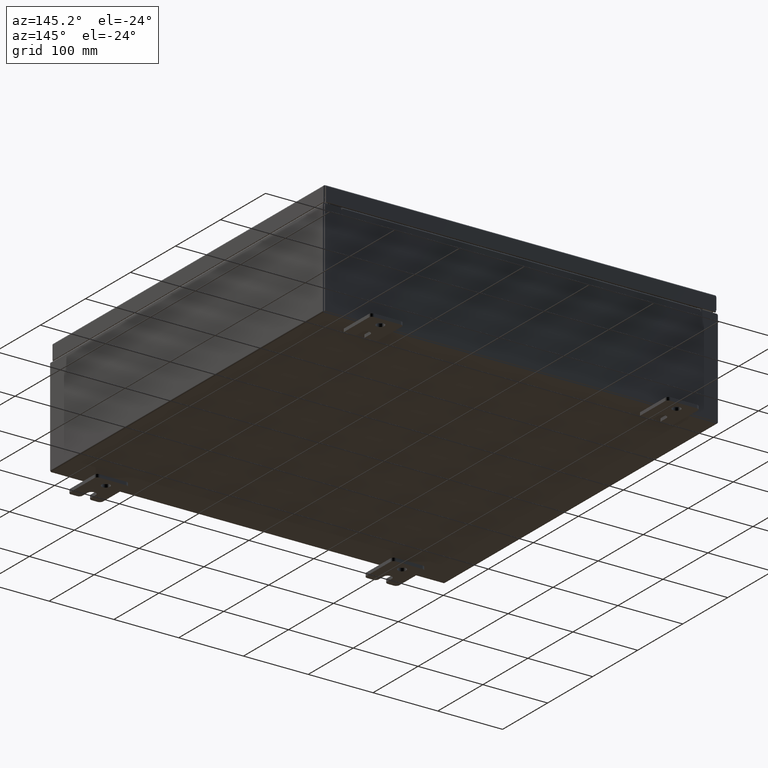
[diagram: clean part render]
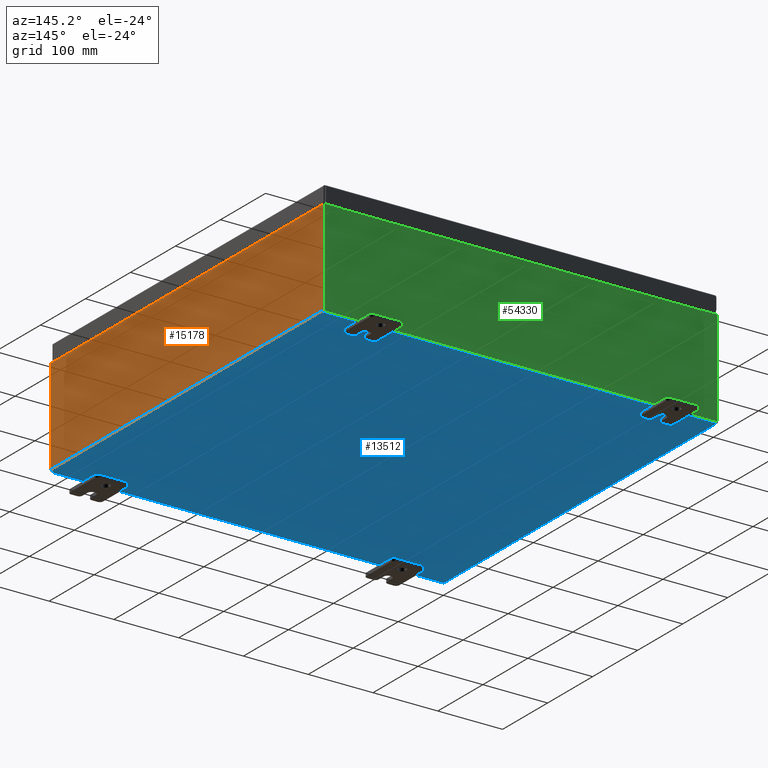
[diagram: same view with three faces highlighted in distinct colors, each labeled with its STEP entity id]
A machine part, auxiliary view with three faces highlighted in distinct colors.
Their STEP definitions:

[orange] entity #15178 — the highlighted planar face has unit normal (-1, 0, 0).
#2900 = LINE ( 'NONE', #6204, #40465 ) ;
#4732 = VECTOR ( 'NONE', #24014, 39.37007874015748100 ) ;
#6204 = CARTESIAN_POINT ( 'NONE',  ( 11.99999999999999800, 11.92529999999999800, -4.009536492811464200E-014 ) ) ;
#6320 = ORIENTED_EDGE ( 'NONE', *, *, #22843, .T. ) ;
#8181 = DIRECTION ( 'NONE',  ( -0.0000000000000000000, -1.000000000000000000, -0.0000000000000000000 ) ) ;
#11102 = ORIENTED_EDGE ( 'NONE', *, *, #27603, .T. ) ;
#13119 = CARTESIAN_POINT ( 'NONE',  ( 12.00000000000001800, 11.92529999999999800, 5.837600000000001000 ) ) ;
#15178 = ADVANCED_FACE ( 'NONE', ( #49712 ), #19021, .F. ) ;
#15546 = EDGE_CURVE ( 'NONE', #23301, #36676, #25959, .T. ) ;
#15732 = ORIENTED_EDGE ( 'NONE', *, *, #28628, .T. ) ;
#15972 = CARTESIAN_POINT ( 'NONE',  ( 11.99999999999999800, -11.92530000000000400, 0.01299999999999986400 ) ) ;
#16179 = DIRECTION ( 'NONE',  ( -0.0000000000000000000, -1.000000000000000000, -0.0000000000000000000 ) ) ;
#18312 = CARTESIAN_POINT ( 'NONE',  ( 12.00000000000001800, 11.92529999999999600, 5.837600000000001000 ) ) ;
#19021 = PLANE ( 'NONE',  #26257 ) ;
#20578 = VERTEX_POINT ( 'NONE', #18312 ) ;
#22843 = EDGE_CURVE ( 'NONE', #51726, #36676, #55375, .T. ) ;
#23301 = VERTEX_POINT ( 'NONE', #61904 ) ;
#24014 = DIRECTION ( 'NONE',  ( -3.319545939341922800E-015, 0.0000000000000000000, -1.000000000000000000 ) ) ;
#25895 = VECTOR ( 'NONE', #8181, 39.37007874015748100 ) ;
#25959 = LINE ( 'NONE', #15972, #63489 ) ;
#26150 = CARTESIAN_POINT ( 'NONE',  ( 11.99999999999999800, -11.92530000000000400, 0.01299999999999985900 ) ) ;
#26257 = AXIS2_PLACEMENT_3D ( 'NONE', #28867, #63120, #33744 ) ;
#27603 = EDGE_CURVE ( 'NONE', #23301, #20578, #2900, .T. ) ;
#28440 = ORIENTED_EDGE ( 'NONE', *, *, #15546, .F. ) ;
#28628 = EDGE_CURVE ( 'NONE', #20578, #51726, #50404, .T. ) ;
#28721 = EDGE_LOOP ( 'NONE', ( #15732, #6320, #28440, #11102 ) ) ;
#28867 = CARTESIAN_POINT ( 'NONE',  ( 11.99999999999999800, 0.0000000000000000000, -4.009536492811464200E-014 ) ) ;
#33744 = DIRECTION ( 'NONE',  ( 3.319545939341922000E-015, 0.0000000000000000000, 1.000000000000000000 ) ) ;
#36676 = VERTEX_POINT ( 'NONE', #26150 ) ;
#40465 = VECTOR ( 'NONE', #59789, 39.37007874015748100 ) ;
#43949 = CARTESIAN_POINT ( 'NONE',  ( 12.00000000000001800, -11.92530000000000400, 5.837600000000001000 ) ) ;
#48400 = CARTESIAN_POINT ( 'NONE',  ( 11.99999999999999800, -11.92530000000000400, -4.009536492811464200E-014 ) ) ;
#49712 = FACE_OUTER_BOUND ( 'NONE', #28721, .T. ) ;
#50404 = LINE ( 'NONE', #13119, #25895 ) ;
#51726 = VERTEX_POINT ( 'NONE', #43949 ) ;
#55375 = LINE ( 'NONE', #48400, #4732 ) ;
#59789 = DIRECTION ( 'NONE',  ( 3.319545939341922800E-015, 0.0000000000000000000, 1.000000000000000000 ) ) ;
#61904 = CARTESIAN_POINT ( 'NONE',  ( 11.99999999999999800, 11.92529999999999600, 0.01299999999999986400 ) ) ;
#63120 = DIRECTION ( 'NONE',  ( -1.000000000000000000, 0.0000000000000000000, 3.319545939341922000E-015 ) ) ;
#63489 = VECTOR ( 'NONE', #16179, 39.37007874015748100 ) ;

[blue] entity #13512 — the highlighted planar face has unit normal (0, 0, -1).
#408 = DIRECTION ( 'NONE',  ( -0.0000000000000000000, 1.000000000000000000, -0.0000000000000000000 ) ) ;
#1200 = EDGE_LOOP ( 'NONE', ( #17923, #57495, #2611, #40762 ) ) ;
#2166 = FACE_OUTER_BOUND ( 'NONE', #1200, .T. ) ;
#2611 = ORIENTED_EDGE ( 'NONE', *, *, #36293, .F. ) ;
#4412 = VECTOR ( 'NONE', #39844, 39.37007874015748100 ) ;
#13512 = ADVANCED_FACE ( 'NONE', ( #2166 ), #56625, .T. ) ;
#14668 = AXIS2_PLACEMENT_3D ( 'NONE', #22578, #27507, #61740 ) ;
#15444 = CARTESIAN_POINT ( 'NONE',  ( -12.00000000000000400, -11.92530000000000400, -0.07470000000000000300 ) ) ;
#17923 = ORIENTED_EDGE ( 'NONE', *, *, #27515, .F. ) ;
#18587 = EDGE_CURVE ( 'NONE', #38878, #34836, #27327, .T. ) ;
#18910 = DIRECTION ( 'NONE',  ( -1.000000000000000000, -0.0000000000000000000, -0.0000000000000000000 ) ) ;
#21769 = VERTEX_POINT ( 'NONE', #36043 ) ;
#22578 = CARTESIAN_POINT ( 'NONE',  ( 0.0000000000000000000, 0.0000000000000000000, -0.07470000000000000300 ) ) ;
#23843 = CARTESIAN_POINT ( 'NONE',  ( -12.00000000000000400, 11.92529999999999800, -0.07470000000000000300 ) ) ;
#24714 = LINE ( 'NONE', #23843, #50784 ) ;
#26929 = LINE ( 'NONE', #59891, #52956 ) ;
#27327 = LINE ( 'NONE', #29768, #38735 ) ;
#27507 = DIRECTION ( 'NONE',  ( 0.0000000000000000000, 0.0000000000000000000, -1.000000000000000000 ) ) ;
#27515 = EDGE_CURVE ( 'NONE', #38878, #21769, #43535, .T. ) ;
#28614 = CARTESIAN_POINT ( 'NONE',  ( 11.91229999999999800, 11.92529999999999600, -0.07469999999999994700 ) ) ;
#29768 = CARTESIAN_POINT ( 'NONE',  ( -11.91230000000000400, -11.92530000000000400, -0.07469999999999994700 ) ) ;
#34836 = VERTEX_POINT ( 'NONE', #48285 ) ;
#36043 = CARTESIAN_POINT ( 'NONE',  ( 11.91229999999998900, -11.92530000000000400, -0.07470000000000000300 ) ) ;
#36293 = EDGE_CURVE ( 'NONE', #49210, #34836, #24714, .T. ) ;
#38735 = VECTOR ( 'NONE', #408, 39.37007874015748100 ) ;
#38878 = VERTEX_POINT ( 'NONE', #51295 ) ;
#39844 = DIRECTION ( 'NONE',  ( 1.000000000000000000, 0.0000000000000000000, 0.0000000000000000000 ) ) ;
#40762 = ORIENTED_EDGE ( 'NONE', *, *, #42091, .T. ) ;
#42091 = EDGE_CURVE ( 'NONE', #49210, #21769, #26929, .T. ) ;
#43535 = LINE ( 'NONE', #15444, #4412 ) ;
#48285 = CARTESIAN_POINT ( 'NONE',  ( -11.91230000000000400, 11.92529999999999800, -0.07470000000000000300 ) ) ;
#49210 = VERTEX_POINT ( 'NONE', #28614 ) ;
#50784 = VECTOR ( 'NONE', #18910, 39.37007874015748100 ) ;
#51295 = CARTESIAN_POINT ( 'NONE',  ( -11.91230000000000400, -11.92530000000000000, -0.07469999999999994700 ) ) ;
#52956 = VECTOR ( 'NONE', #54986, 39.37007874015748100 ) ;
#54986 = DIRECTION ( 'NONE',  ( -0.0000000000000000000, -1.000000000000000000, -0.0000000000000000000 ) ) ;
#56625 = PLANE ( 'NONE',  #14668 ) ;
#57495 = ORIENTED_EDGE ( 'NONE', *, *, #18587, .T. ) ;
#59891 = CARTESIAN_POINT ( 'NONE',  ( 11.91229999999999800, 11.92529999999999800, -0.07469999999999994700 ) ) ;
#61740 = DIRECTION ( 'NONE',  ( -1.000000000000000000, 0.0000000000000000000, -0.0000000000000000000 ) ) ;

[green] entity #54330 — the highlighted planar face has unit normal (0, -1, 0).
#88 = VECTOR ( 'NONE', #29248, 39.37007874015748100 ) ;
#373 = DIRECTION ( 'NONE',  ( 0.0000000000000000000, 0.0000000000000000000, -1.000000000000000000 ) ) ;
#387 = VECTOR ( 'NONE', #5350, 39.37007874015748100 ) ;
#397 = VECTOR ( 'NONE', #27421, 39.37007874015748100 ) ;
#707 = CARTESIAN_POINT ( 'NONE',  ( 11.92530000000000000, 0.0000000000000000000, 2.925300000000000500 ) ) ;
#1283 = EDGE_LOOP ( 'NONE', ( #19003, #2280, #26373, #31423, #49691, #26502, #12039, #28744, #12358, #7094, #22448, #17485 ) ) ;
#1734 = VERTEX_POINT ( 'NONE', #46053 ) ;
#2169 = LINE ( 'NONE', #56698, #28285 ) ;
#2199 = PLANE ( 'NONE',  #38785 ) ;
#2280 = ORIENTED_EDGE ( 'NONE', *, *, #48353, .F. ) ;
#2396 = CARTESIAN_POINT ( 'NONE',  ( 0.0000000000000000000, 0.0000000000000000000, 0.0000000000000000000 ) ) ;
#3756 = VERTEX_POINT ( 'NONE', #18971 ) ;
#3951 = AXIS2_PLACEMENT_3D ( 'NONE', #11365, #45660, #16299 ) ;
#4783 = CARTESIAN_POINT ( 'NONE',  ( 11.92530000000000000, 0.0000000000000000000, 2.925300000000000500 ) ) ;
#5182 = DIRECTION ( 'NONE',  ( -0.0000000000000000000, -0.0000000000000000000, 1.000000000000000000 ) ) ;
#5350 = DIRECTION ( 'NONE',  ( -4.340572780400004900E-014, 0.0000000000000000000, -1.000000000000000000 ) ) ;
#5525 = CARTESIAN_POINT ( 'NONE',  ( -11.92530000000000000, 0.0000000000000000000, -2.925299999999999600 ) ) ;
#7094 = ORIENTED_EDGE ( 'NONE', *, *, #45996, .T. ) ;
#7332 = DIRECTION ( 'NONE',  ( 0.0000000000000000000, -1.000000000000000000, 0.0000000000000000000 ) ) ;
#7847 = CARTESIAN_POINT ( 'NONE',  ( -11.92530000000000000, 0.0000000000000000000, 2.925300000000000500 ) ) ;
#8004 = CARTESIAN_POINT ( 'NONE',  ( -10.92454999999999800, 0.0000000000000000000, 2.925300000000000500 ) ) ;
#10246 = DIRECTION ( 'NONE',  ( -1.000000000000000000, -0.0000000000000000000, -0.0000000000000000000 ) ) ;
#10685 = EDGE_CURVE ( 'NONE', #47231, #16228, #39183, .T. ) ;
#11059 = LINE ( 'NONE', #19268, #24140 ) ;
#11365 = CARTESIAN_POINT ( 'NONE',  ( 10.90587500000000200, 0.0000000000000000000, 2.874950000000000600 ) ) ;
#12039 = ORIENTED_EDGE ( 'NONE', *, *, #30849, .F. ) ;
#12358 = ORIENTED_EDGE ( 'NONE', *, *, #10685, .T. ) ;
#13424 = LINE ( 'NONE', #53799, #387 ) ;
#14097 = AXIS2_PLACEMENT_3D ( 'NONE', #59070, #29739, #373 ) ;
#14930 = CIRCLE ( 'NONE', #3951, 0.01867499999999949400 ) ;
#15261 = VERTEX_POINT ( 'NONE', #19641 ) ;
#16228 = VERTEX_POINT ( 'NONE', #49294 ) ;
#16299 = DIRECTION ( 'NONE',  ( 0.0000000000000000000, 0.0000000000000000000, -1.000000000000000000 ) ) ;
#17179 = LINE ( 'NONE', #48337, #54709 ) ;
#17485 = ORIENTED_EDGE ( 'NONE', *, *, #57597, .T. ) ;
#17732 = EDGE_CURVE ( 'NONE', #1734, #40521, #51880, .T. ) ;
#18897 = EDGE_CURVE ( 'NONE', #41153, #58598, #19621, .T. ) ;
#18971 = CARTESIAN_POINT ( 'NONE',  ( -10.88720000000000000, -0.0000000000000000000, 2.874950000000000600 ) ) ;
#19003 = ORIENTED_EDGE ( 'NONE', *, *, #18897, .F. ) ;
#19057 = EDGE_CURVE ( 'NONE', #42399, #47231, #37955, .T. ) ;
#19268 = CARTESIAN_POINT ( 'NONE',  ( -11.92530000000000000, 0.0000000000000000000, 2.925300000000000500 ) ) ;
#19621 = LINE ( 'NONE', #60802, #57169 ) ;
#19641 = CARTESIAN_POINT ( 'NONE',  ( 10.92455000000000000, 0.0000000000000000000, 2.874950000000000600 ) ) ;
#22448 = ORIENTED_EDGE ( 'NONE', *, *, #17732, .T. ) ;
#22959 = LINE ( 'NONE', #5525, #60460 ) ;
#23334 = DIRECTION ( 'NONE',  ( 1.000000000000000000, 0.0000000000000000000, 0.0000000000000000000 ) ) ;
#24140 = VECTOR ( 'NONE', #53522, 39.37007874015748100 ) ;
#24305 = VECTOR ( 'NONE', #5182, 39.37007874015748100 ) ;
#25008 = VECTOR ( 'NONE', #23334, 39.37007874015748100 ) ;
#26373 = ORIENTED_EDGE ( 'NONE', *, *, #27068, .F. ) ;
#26502 = ORIENTED_EDGE ( 'NONE', *, *, #57040, .F. ) ;
#27068 = EDGE_CURVE ( 'NONE', #60959, #3756, #2169, .T. ) ;
#27375 = DIRECTION ( 'NONE',  ( 0.0000000000000000000, 0.0000000000000000000, -1.000000000000000000 ) ) ;
#27421 = DIRECTION ( 'NONE',  ( 1.000000000000000000, 0.0000000000000000000, 0.0000000000000000000 ) ) ;
#27724 = CARTESIAN_POINT ( 'NONE',  ( 10.88720000000000200, 0.0000000000000000000, 2.874950000000000600 ) ) ;
#28285 = VECTOR ( 'NONE', #27375, 39.37007874015748100 ) ;
#28568 = VERTEX_POINT ( 'NONE', #27724 ) ;
#28744 = ORIENTED_EDGE ( 'NONE', *, *, #19057, .T. ) ;
#29248 = DIRECTION ( 'NONE',  ( 0.0000000000000000000, 0.0000000000000000000, -1.000000000000000000 ) ) ;
#29739 = DIRECTION ( 'NONE',  ( -0.0000000000000000000, 1.000000000000000000, -0.0000000000000000000 ) ) ;
#29948 = EDGE_CURVE ( 'NONE', #60959, #30381, #51102, .T. ) ;
#30381 = VERTEX_POINT ( 'NONE', #41425 ) ;
#30849 = EDGE_CURVE ( 'NONE', #42399, #15261, #13424, .T. ) ;
#31423 = ORIENTED_EDGE ( 'NONE', *, *, #29948, .T. ) ;
#31470 = DIRECTION ( 'NONE',  ( 0.0000000000000000000, 0.0000000000000000000, 1.000000000000000000 ) ) ;
#34545 = CARTESIAN_POINT ( 'NONE',  ( -11.92530000000000000, 0.0000000000000000000, 2.925300000000000500 ) ) ;
#37955 = LINE ( 'NONE', #7847, #397 ) ;
#38785 = AXIS2_PLACEMENT_3D ( 'NONE', #2396, #7332, #41602 ) ;
#39183 = LINE ( 'NONE', #4783, #88 ) ;
#40521 = VERTEX_POINT ( 'NONE', #49853 ) ;
#41153 = VERTEX_POINT ( 'NONE', #48308 ) ;
#41425 = CARTESIAN_POINT ( 'NONE',  ( 10.88720000000000200, 0.0000000000000000000, 2.912300000000000600 ) ) ;
#41602 = DIRECTION ( 'NONE',  ( 0.0000000000000000000, -0.0000000000000000000, -1.000000000000000000 ) ) ;
#42399 = VERTEX_POINT ( 'NONE', #43548 ) ;
#43548 = CARTESIAN_POINT ( 'NONE',  ( 10.92455000000000000, 0.0000000000000000000, 2.925300000000000500 ) ) ;
#45660 = DIRECTION ( 'NONE',  ( -0.0000000000000000000, 1.000000000000000000, -0.0000000000000000000 ) ) ;
#45996 = EDGE_CURVE ( 'NONE', #16228, #1734, #22959, .T. ) ;
#46053 = CARTESIAN_POINT ( 'NONE',  ( -11.92530000000000000, 0.0000000000000000000, -2.925299999999999600 ) ) ;
#47231 = VERTEX_POINT ( 'NONE', #707 ) ;
#47699 = CARTESIAN_POINT ( 'NONE',  ( -10.88720000000000200, 1.024442997624098700E-016, 2.912300000000000600 ) ) ;
#48308 = CARTESIAN_POINT ( 'NONE',  ( -10.92454999999999800, 0.0000000000000000000, 2.874950000000000600 ) ) ;
#48337 = CARTESIAN_POINT ( 'NONE',  ( 10.88720000000000200, 0.0000000000000000000, 0.0000000000000000000 ) ) ;
#48353 = EDGE_CURVE ( 'NONE', #3756, #41153, #52665, .T. ) ;
#49294 = CARTESIAN_POINT ( 'NONE',  ( 11.92530000000000000, 0.0000000000000000000, -2.925299999999999600 ) ) ;
#49691 = ORIENTED_EDGE ( 'NONE', *, *, #60330, .F. ) ;
#49853 = CARTESIAN_POINT ( 'NONE',  ( -11.92530000000000000, 0.0000000000000000000, 2.925300000000000500 ) ) ;
#51102 = LINE ( 'NONE', #47699, #25008 ) ;
#51880 = LINE ( 'NONE', #34545, #24305 ) ;
#52665 = CIRCLE ( 'NONE', #14097, 0.01867499999999949400 ) ;
#53262 = DIRECTION ( 'NONE',  ( 0.0000000000000000000, 0.0000000000000000000, 1.000000000000000000 ) ) ;
#53522 = DIRECTION ( 'NONE',  ( 1.000000000000000000, 0.0000000000000000000, 0.0000000000000000000 ) ) ;
#53594 = CARTESIAN_POINT ( 'NONE',  ( -10.88720000000000000, 1.024442997624098700E-016, 2.912300000000000600 ) ) ;
#53799 = CARTESIAN_POINT ( 'NONE',  ( 10.92454999999987600, -0.0000000000000000000, -4.741880436811833600E-013 ) ) ;
#54330 = ADVANCED_FACE ( 'NONE', ( #54973 ), #2199, .F. ) ;
#54709 = VECTOR ( 'NONE', #53262, 39.37007874015748100 ) ;
#54973 = FACE_OUTER_BOUND ( 'NONE', #1283, .T. ) ;
#56698 = CARTESIAN_POINT ( 'NONE',  ( -10.88720000000000000, -0.0000000000000000000, 0.0000000000000000000 ) ) ;
#57040 = EDGE_CURVE ( 'NONE', #15261, #28568, #14930, .T. ) ;
#57169 = VECTOR ( 'NONE', #31470, 39.37007874015748100 ) ;
#57597 = EDGE_CURVE ( 'NONE', #40521, #58598, #11059, .T. ) ;
#58598 = VERTEX_POINT ( 'NONE', #8004 ) ;
#59070 = CARTESIAN_POINT ( 'NONE',  ( -10.90587500000000000, 0.0000000000000000000, 2.874950000000000600 ) ) ;
#60330 = EDGE_CURVE ( 'NONE', #28568, #30381, #17179, .T. ) ;
#60460 = VECTOR ( 'NONE', #10246, 39.37007874015748100 ) ;
#60802 = CARTESIAN_POINT ( 'NONE',  ( -10.92454999999999800, -0.0000000000000000000, 0.0000000000000000000 ) ) ;
#60959 = VERTEX_POINT ( 'NONE', #53594 ) ;